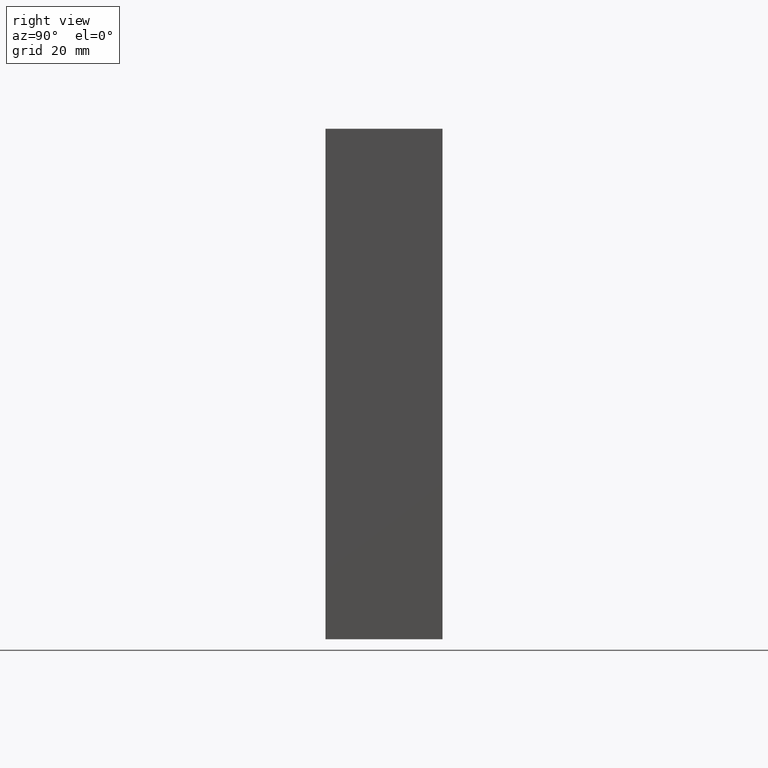
[diagram: clean part render]
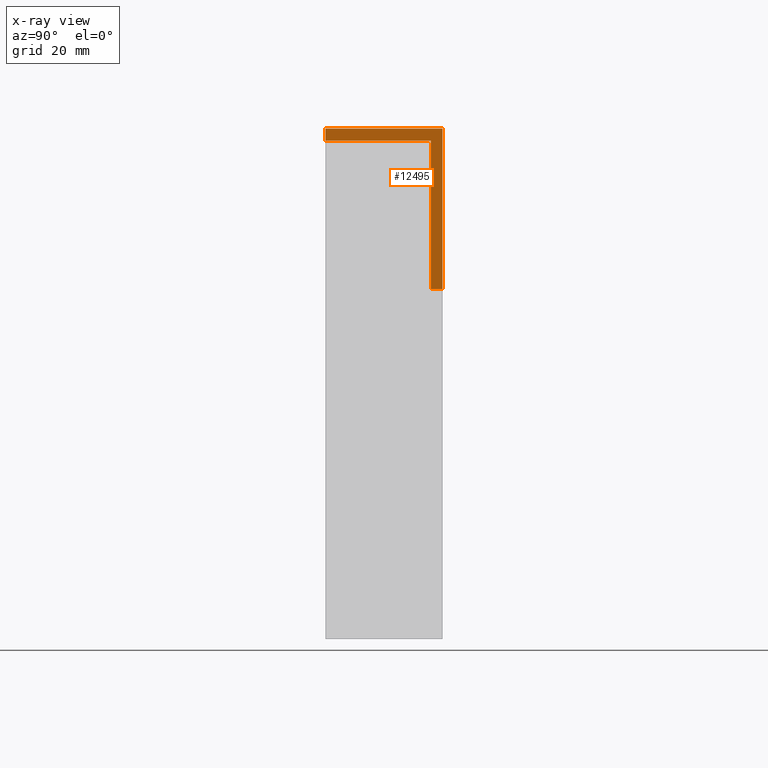
[diagram: x-ray — body ghosted, one internal face saturated and labeled with its STEP entity id]
A machine part, right view, then the same camera in x-ray: the body is ghosted and one INTERNAL B-rep face — a face not visible from any outside direction — is saturated and labeled: STEP entity #12495.
In plain terms, the highlighted planar face has unit normal (1, 0, -0).
Its self-contained STEP definition (entity closure, byte-faithful):
#476 = LINE ( 'NONE', #10198, #857 ) ;
#722 = CARTESIAN_POINT ( 'NONE',  ( 27.24999999999999300, 22.50000000000000700, -52.00000000000000700 ) ) ;
#736 = VERTEX_POINT ( 'NONE', #3377 ) ;
#857 = VECTOR ( 'NONE', #1039, 1000.000000000000000 ) ;
#1039 = DIRECTION ( 'NONE',  ( -0.0000000000000000000, -1.000000000000000000, -0.0000000000000000000 ) ) ;
#1086 = LINE ( 'NONE', #1342, #11250 ) ;
#1342 = CARTESIAN_POINT ( 'NONE',  ( 27.24999999999999600, 25.00000000000000000, -20.25000000000000400 ) ) ;
#2054 = LINE ( 'NONE', #4080, #13824 ) ;
#2108 = VERTEX_POINT ( 'NONE', #8135 ) ;
#2162 = VERTEX_POINT ( 'NONE', #4155 ) ;
#2657 = ORIENTED_EDGE ( 'NONE', *, *, #9597, .T. ) ;
#2765 = DIRECTION ( 'NONE',  ( 1.273191542001326800E-016, -0.0000000000000000000, 1.000000000000000000 ) ) ;
#2801 = ORIENTED_EDGE ( 'NONE', *, *, #15751, .T. ) ;
#2815 = CARTESIAN_POINT ( 'NONE',  ( 27.25000000000000000, 22.50000000000000700, -3.469446951953615000E-015 ) ) ;
#3377 = CARTESIAN_POINT ( 'NONE',  ( 27.24999999999999300, 0.0000000000000000000, -54.50000000000000000 ) ) ;
#4080 = CARTESIAN_POINT ( 'NONE',  ( 27.24999999999999300, 0.0000000000000000000, -54.50000000000000000 ) ) ;
#4155 = CARTESIAN_POINT ( 'NONE',  ( 27.25000000000000700, 25.00000000000000000, -20.25000000000000400 ) ) ;
#4758 = CARTESIAN_POINT ( 'NONE',  ( 27.24999999999999300, 25.00000000000000000, -54.50000000000000000 ) ) ;
#5292 = VERTEX_POINT ( 'NONE', #11001 ) ;
#5627 = EDGE_CURVE ( 'NONE', #13015, #5292, #16657, .T. ) ;
#6115 = VECTOR ( 'NONE', #2765, 1000.000000000000000 ) ;
#6563 = DIRECTION ( 'NONE',  ( -1.273191542001326800E-016, -0.0000000000000000000, -1.000000000000000000 ) ) ;
#7734 = ORIENTED_EDGE ( 'NONE', *, *, #10742, .F. ) ;
#8023 = DIRECTION ( 'NONE',  ( 0.0000000000000000000, -1.000000000000000000, 0.0000000000000000000 ) ) ;
#8091 = ORIENTED_EDGE ( 'NONE', *, *, #12804, .T. ) ;
#8135 = CARTESIAN_POINT ( 'NONE',  ( 27.24999999999999300, 0.0000000000000000000, -52.00000000000000700 ) ) ;
#8215 = LINE ( 'NONE', #4758, #17098 ) ;
#8291 = VERTEX_POINT ( 'NONE', #15778 ) ;
#8343 = PLANE ( 'NONE',  #9063 ) ;
#9063 = AXIS2_PLACEMENT_3D ( 'NONE', #16373, #12384, #14995 ) ;
#9597 = EDGE_CURVE ( 'NONE', #13015, #2108, #476, .T. ) ;
#9829 = EDGE_LOOP ( 'NONE', ( #16938, #8091, #15506, #2657, #2801, #7734 ) ) ;
#10144 = CARTESIAN_POINT ( 'NONE',  ( 27.24999999999999300, 25.00000000000000000, -54.50000000000000000 ) ) ;
#10198 = CARTESIAN_POINT ( 'NONE',  ( 27.24999999999999300, 141.2755348299890600, -52.00000000000000700 ) ) ;
#10742 = EDGE_CURVE ( 'NONE', #8291, #736, #8215, .T. ) ;
#11001 = CARTESIAN_POINT ( 'NONE',  ( 27.25000000000000700, 22.50000000000000400, -20.25000000000000400 ) ) ;
#11250 = VECTOR ( 'NONE', #8023, 1000.000000000000000 ) ;
#11371 = LINE ( 'NONE', #10144, #14452 ) ;
#12066 = FACE_OUTER_BOUND ( 'NONE', #9829, .T. ) ;
#12384 = DIRECTION ( 'NONE',  ( -1.000000000000000000, 0.0000000000000000000, 1.273191542001326800E-016 ) ) ;
#12495 = ADVANCED_FACE ( 'NONE', ( #12066 ), #8343, .F. ) ;
#12804 = EDGE_CURVE ( 'NONE', #2162, #5292, #1086, .T. ) ;
#13015 = VERTEX_POINT ( 'NONE', #722 ) ;
#13824 = VECTOR ( 'NONE', #6563, 1000.000000000000000 ) ;
#14312 = DIRECTION ( 'NONE',  ( -1.273191542001326800E-016, -0.0000000000000000000, -1.000000000000000000 ) ) ;
#14452 = VECTOR ( 'NONE', #14312, 1000.000000000000000 ) ;
#14995 = DIRECTION ( 'NONE',  ( 1.273191542001326800E-016, 0.0000000000000000000, 1.000000000000000000 ) ) ;
#15506 = ORIENTED_EDGE ( 'NONE', *, *, #5627, .F. ) ;
#15594 = EDGE_CURVE ( 'NONE', #2162, #8291, #11371, .T. ) ;
#15751 = EDGE_CURVE ( 'NONE', #2108, #736, #2054, .T. ) ;
#15778 = CARTESIAN_POINT ( 'NONE',  ( 27.24999999999999300, 25.00000000000000000, -54.50000000000000000 ) ) ;
#16373 = CARTESIAN_POINT ( 'NONE',  ( 27.24999999999999300, 25.00000000000000000, -54.50000000000000000 ) ) ;
#16657 = LINE ( 'NONE', #2815, #6115 ) ;
#16723 = DIRECTION ( 'NONE',  ( -0.0000000000000000000, -1.000000000000000000, -0.0000000000000000000 ) ) ;
#16938 = ORIENTED_EDGE ( 'NONE', *, *, #15594, .F. ) ;
#17098 = VECTOR ( 'NONE', #16723, 1000.000000000000000 ) ;